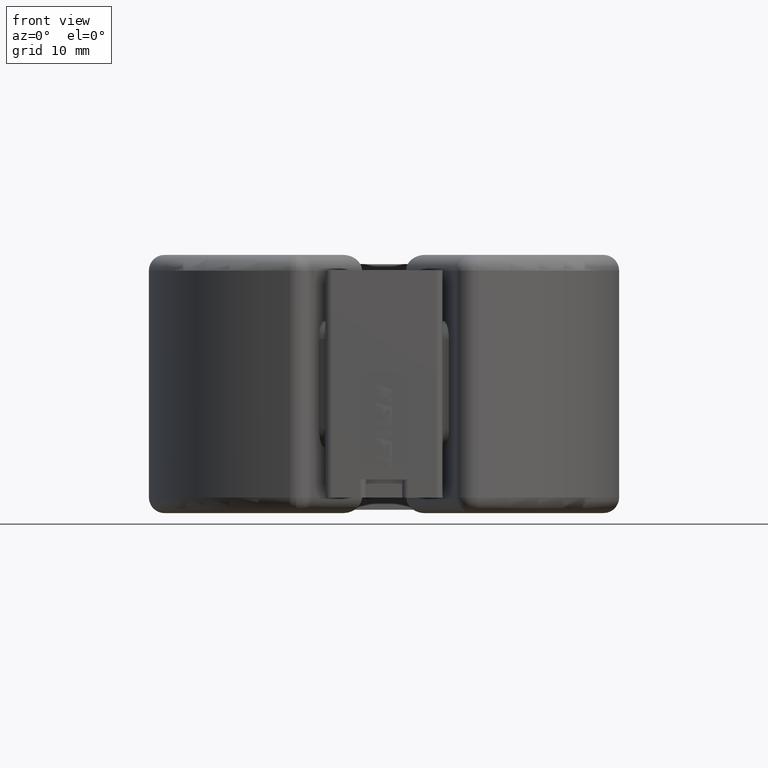
[diagram: clean part render]
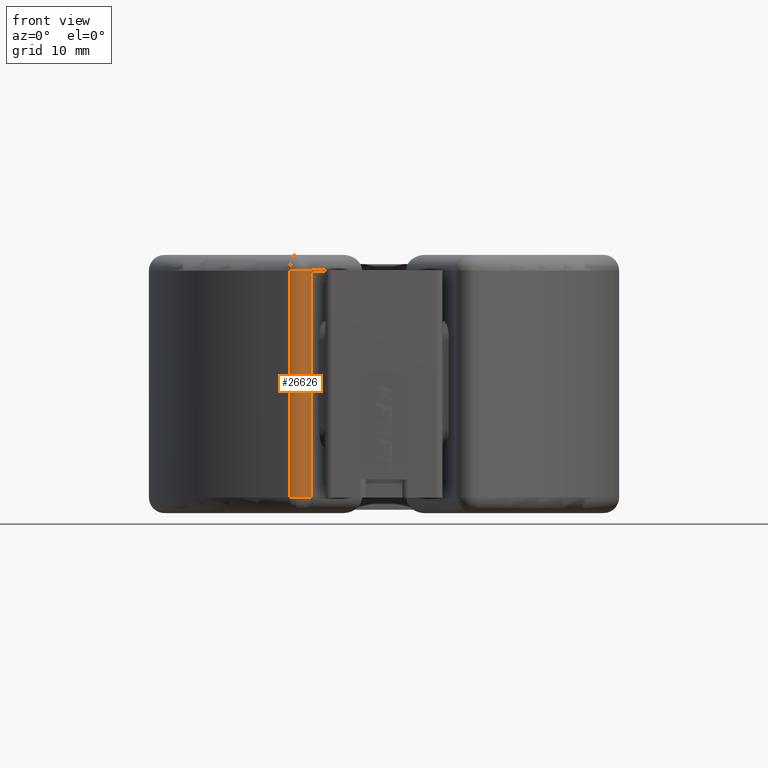
[diagram: same view with one face highlighted and labeled with its STEP entity id]
A machine part, front view. The second image highlights one B-rep face of the part: STEP entity #26626.
In plain terms, the highlighted cylindrical surface (edge-blend (fillet) strip) has radius 1.3 mm, axis along (0, -0, -1).
Its self-contained STEP definition (entity closure, byte-faithful):
#33 = VECTOR ( 'NONE', #10550, 1000.000000000000000 ) ;
#641 = CARTESIAN_POINT ( 'NONE',  ( -6.028666190046655160, -17.44091753935554934, 15.82499999999999218 ) ) ;
#1066 = DIRECTION ( 'NONE',  ( 0.000000000000000000, 1.000000000000000000, 0.000000000000000000 ) ) ;
#1494 = EDGE_CURVE ( 'NONE', #14669, #25464, #12982, .T. ) ;
#1756 = CARTESIAN_POINT ( 'NONE',  ( -6.028666190046648055, -17.44091753935554934, -4.275000000000004796 ) ) ;
#2567 = DIRECTION ( 'NONE',  ( 0.000000000000000000, 1.000000000000000000, 0.000000000000000000 ) ) ;
#2976 = EDGE_CURVE ( 'NONE', #16179, #10111, #6001, .T. ) ;
#3363 = CARTESIAN_POINT ( 'NONE',  ( -6.028666190046655160, -17.44091753935554934, 14.52500000000000391 ) ) ;
#5066 = DIRECTION ( 'NONE',  ( 0.000000000000000000, 1.000000000000000000, 0.000000000000000000 ) ) ;
#5324 = ORIENTED_EDGE ( 'NONE', *, *, #10547, .T. ) ;
#6001 = LINE ( 'NONE', #26971, #33 ) ;
#6013 = DIRECTION ( 'NONE',  ( -6.442710090731450671E-17, 6.938893903907229610E-17, 1.000000000000000000 ) ) ;
#7128 = DIRECTION ( 'NONE',  ( -6.442710090731450671E-17, 6.938893903907229610E-17, 1.000000000000000000 ) ) ;
#7845 = VERTEX_POINT ( 'NONE', #3363 ) ;
#8694 = CIRCLE ( 'NONE', #10034, 1.299999999999992051 ) ;
#8866 = EDGE_CURVE ( 'NONE', #7845, #16495, #8949, .T. ) ;
#8949 = CIRCLE ( 'NONE', #14225, 1.299999999999992051 ) ;
#9492 = CARTESIAN_POINT ( 'NONE',  ( -7.268498226019345587, -17.05000000000000782, 14.52500000000000391 ) ) ;
#9565 = CARTESIAN_POINT ( 'NONE',  ( -7.268498226019345587, -17.05000000000000782, 15.82499999999999218 ) ) ;
#10034 = AXIS2_PLACEMENT_3D ( 'NONE', #26604, #7128, #5066 ) ;
#10111 = VERTEX_POINT ( 'NONE', #19782 ) ;
#10290 = CYLINDRICAL_SURFACE ( 'NONE', #11268, 1.299999999999992051 ) ;
#10547 = EDGE_CURVE ( 'NONE', #10111, #14669, #8694, .T. ) ;
#10550 = DIRECTION ( 'NONE',  ( 6.442710090731450671E-17, -6.938893903907229610E-17, -1.000000000000000000 ) ) ;
#10586 = LINE ( 'NONE', #641, #27197 ) ;
#10789 = CARTESIAN_POINT ( 'NONE',  ( -7.268498226019338482, -18.35000000000002629, -4.275000000000004796 ) ) ;
#11268 = AXIS2_PLACEMENT_3D ( 'NONE', #9565, #24031, #2567 ) ;
#11748 = CIRCLE ( 'NONE', #16587, 1.299999999999992051 ) ;
#12111 = DIRECTION ( 'NONE',  ( 6.442710090731450671E-17, -6.938893903907229610E-17, -1.000000000000000000 ) ) ;
#12226 = FACE_OUTER_BOUND ( 'NONE', #21203, .T. ) ;
#12322 = ORIENTED_EDGE ( 'NONE', *, *, #14151, .F. ) ;
#12349 = CARTESIAN_POINT ( 'NONE',  ( -7.268498226019338482, -17.05000000000002913, -4.275000000000004796 ) ) ;
#12982 = CIRCLE ( 'NONE', #18724, 1.299999999999992051 ) ;
#14072 = CARTESIAN_POINT ( 'NONE',  ( -7.268498226019345587, -17.05000000000000782, 14.52500000000000391 ) ) ;
#14151 = EDGE_CURVE ( 'NONE', #7845, #25464, #10586, .T. ) ;
#14225 = AXIS2_PLACEMENT_3D ( 'NONE', #9492, #24526, #1066 ) ;
#14438 = DIRECTION ( 'NONE',  ( 3.336006684570803415E-15, 1.000000000000000000, 0.000000000000000000 ) ) ;
#14669 = VERTEX_POINT ( 'NONE', #10789 ) ;
#16040 = ORIENTED_EDGE ( 'NONE', *, *, #1494, .T. ) ;
#16050 = CARTESIAN_POINT ( 'NONE',  ( -7.268498226019345587, -18.35000000000000142, 14.52500000000000391 ) ) ;
#16179 = VERTEX_POINT ( 'NONE', #26596 ) ;
#16495 = VERTEX_POINT ( 'NONE', #16050 ) ;
#16587 = AXIS2_PLACEMENT_3D ( 'NONE', #14072, #12111, #18471 ) ;
#17056 = DIRECTION ( 'NONE',  ( 6.442710090731450671E-17, -6.938893903907229610E-17, -1.000000000000000000 ) ) ;
#18471 = DIRECTION ( 'NONE',  ( 0.000000000000000000, 1.000000000000000000, 0.000000000000000000 ) ) ;
#18724 = AXIS2_PLACEMENT_3D ( 'NONE', #12349, #6013, #14438 ) ;
#19782 = CARTESIAN_POINT ( 'NONE',  ( -7.797025153598780456, -18.23771178609268873, -4.275000000000004796 ) ) ;
#19807 = ORIENTED_EDGE ( 'NONE', *, *, #2976, .T. ) ;
#21203 = EDGE_LOOP ( 'NONE', ( #19807, #5324, #16040, #12322, #25798, #22462 ) ) ;
#21700 = EDGE_CURVE ( 'NONE', #16495, #16179, #11748, .T. ) ;
#22462 = ORIENTED_EDGE ( 'NONE', *, *, #21700, .T. ) ;
#24031 = DIRECTION ( 'NONE',  ( 6.442710090731450671E-17, -6.938893903907229610E-17, -1.000000000000000000 ) ) ;
#24526 = DIRECTION ( 'NONE',  ( 6.442710090731450671E-17, -6.938893903907229610E-17, -1.000000000000000000 ) ) ;
#25464 = VERTEX_POINT ( 'NONE', #1756 ) ;
#25798 = ORIENTED_EDGE ( 'NONE', *, *, #8866, .T. ) ;
#26596 = CARTESIAN_POINT ( 'NONE',  ( -7.797025153598787561, -18.23771178609266386, 14.52500000000000391 ) ) ;
#26604 = CARTESIAN_POINT ( 'NONE',  ( -7.268498226019338482, -17.05000000000002913, -4.275000000000004796 ) ) ;
#26626 = ADVANCED_FACE ( 'NONE', ( #12226 ), #10290, .T. ) ;
#26971 = CARTESIAN_POINT ( 'NONE',  ( -7.797025153598787561, -18.23771178609266386, 15.82499999999999218 ) ) ;
#27197 = VECTOR ( 'NONE', #17056, 1000.000000000000000 ) ;